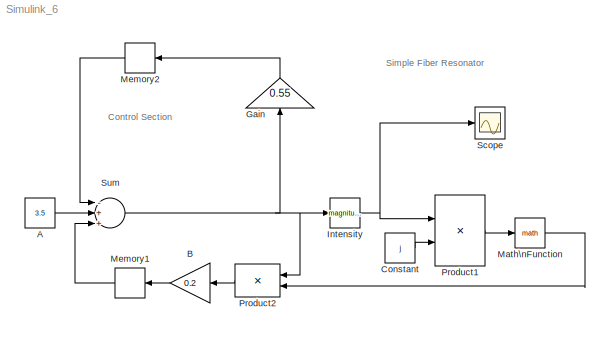
MODEL Simulink_6
KIND model
BLOCK [Constant] A
  SID = 1
  Value = 3.5
BLOCK [Gain] B
  Gain = 0.2
  SID = 2
BLOCK [Constant] Constant
  SID = 3
  Value = j
BLOCK [Gain] Gain
  Gain = 0.55
  SID = 4
BLOCK [Math] Intensity
  Operator = magnitude^2
  Ports = [1, 1]
  SID = 5
BLOCK [Math] Math\nFunction
  Ports = [1, 1]
  SID = 6
BLOCK [Memory] Memory1
  SID = 7
BLOCK [Memory] Memory2
  SID = 8
BLOCK [Product] Product1
  Ports = [2, 1]
  RndMeth = Floor
  SID = 9
BLOCK [Product] Product2
  Ports = [2, 1]
  RndMeth = Floor
  SID = 10
BLOCK [Scope] Scope
  Floating = off
  NumInputPorts = 1
  Ports = [1]
  SID = 11
  ScopeSpecificationString = C++SS(StrPVP('Location','[670, 198, 994, 398]'),StrPVP('Open','on'),StrPVP('ZoomMode','yonly'),MxPVP('AxesTitles',54,'struct(''axes1'',''%<SignalLabel>'')'),StrPVP('TimeRange','400000'),StrPVP('DataFormat','StructureWithTime'),StrPVP('LimitDataPoints','on'),StrPVP('Decimation','1'),StrPVP('BlockParamSampleInput','off'))
BLOCK [Sum] Sum
  Inputs = -++
  Ports = [3, 1]
  SID = 12
ANNOTATION (root): Control Section
ANNOTATION (root): Simple Fiber Resonator
LINE A:1 -> Sum:2
LINE B:1 -> Memory1:1
LINE Constant:1 -> Product1:2
LINE Gain:1 -> Memory2:1
NET Intensity:1 -> Product1:1, Scope:1
LINE Math\nFunction:1 -> Product2:2
LINE Memory1:1 -> Sum:3
LINE Memory2:1 -> Sum:1
LINE Product1:1 -> Math\nFunction:1
LINE Product2:1 -> B:1
NET Sum:1 -> Gain:1, Intensity:1, Product2:1
note: NET lines group one-source signal fan-out (src -> all destinations, sorted); 1:1 wires keep LINE
